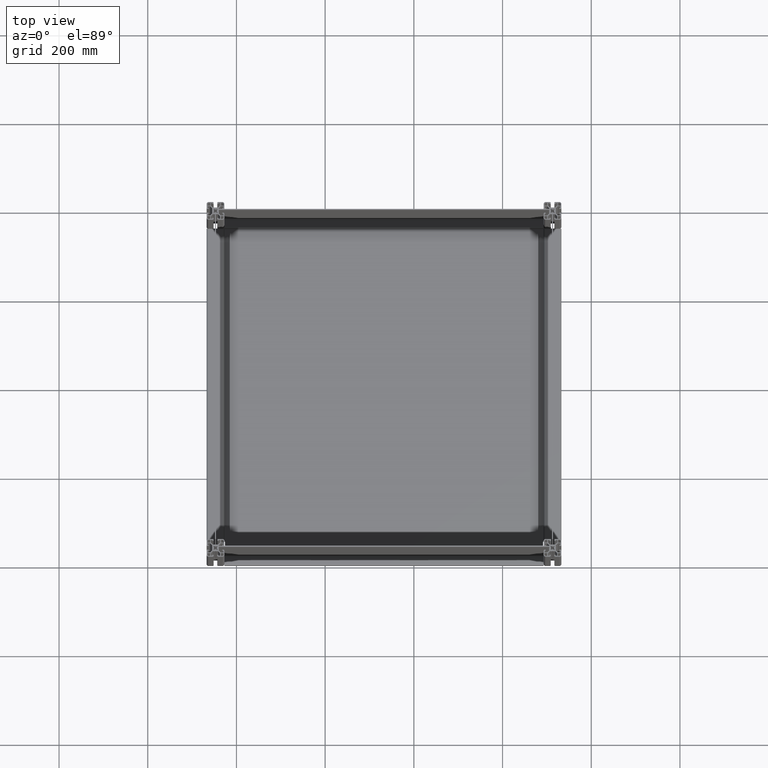
[diagram: clean part render]
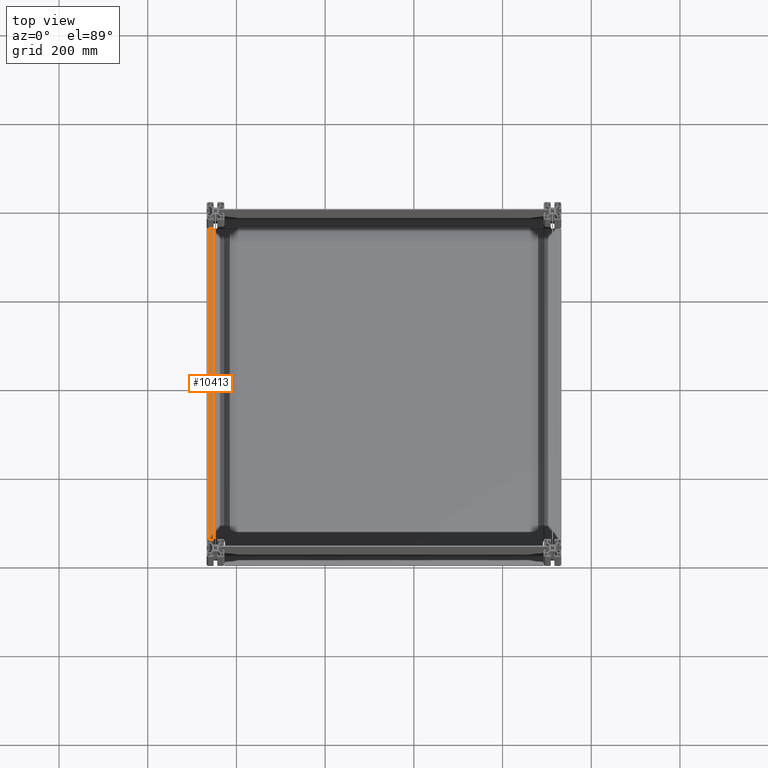
[diagram: same view with one face highlighted and labeled with its STEP entity id]
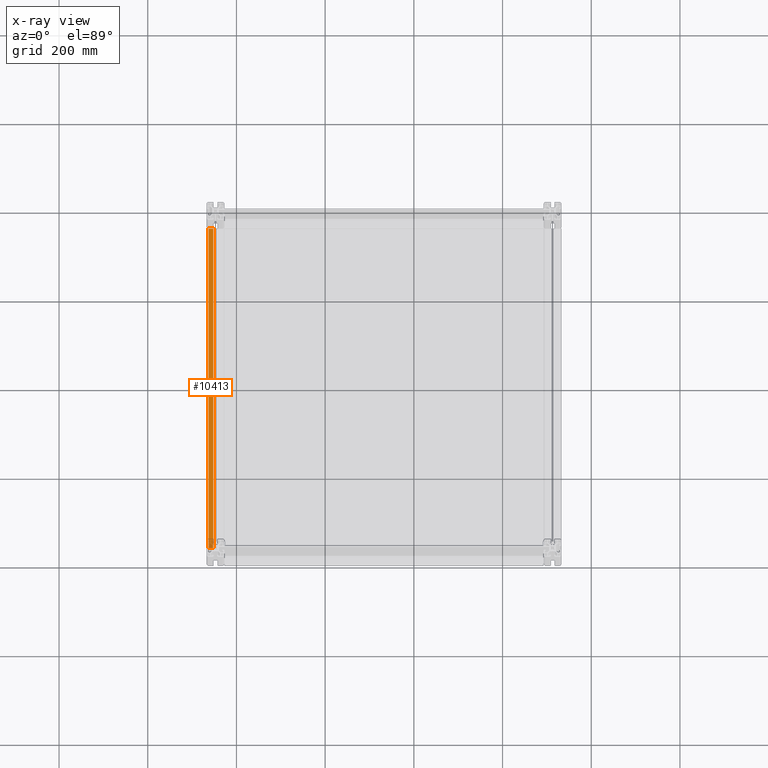
[diagram: x-ray of the same camera — body ghosted, the highlighted face saturated]
A machine part, top view. The second image highlights one B-rep face of the part: STEP entity #10413.
The next image is the same camera in x-ray: the body ghosted, the highlighted face saturated — about 3% of this face is hidden behind the body in this view.
In plain terms, the highlighted planar face has unit normal (0, 0, -1).
Its self-contained STEP definition (entity closure, byte-faithful):
#28 = CARTESIAN_POINT ( 'NONE',  ( -15.50000000000309974, 20.00000000000180123, 0.000000000000000000 ) ) ;
#367 = VECTOR ( 'NONE', #6047, 1000.000000000000000 ) ;
#420 = LINE ( 'NONE', #2843, #367 ) ;
#842 = CARTESIAN_POINT ( 'NONE',  ( -15.50000000000309974, 20.00000000000180123, 720.0000000000000000 ) ) ;
#862 = CARTESIAN_POINT ( 'NONE',  ( -9.799999999999270628, 20.00000000000180123, 720.0000000000000000 ) ) ;
#1830 = EDGE_CURVE ( 'NONE', #7244, #8387, #3088, .T. ) ;
#2493 = LINE ( 'NONE', #842, #9791 ) ;
#2551 = ORIENTED_EDGE ( 'NONE', *, *, #5279, .F. ) ;
#2720 = DIRECTION ( 'NONE',  ( 0.000000000000000000, 0.000000000000000000, -1.000000000000000000 ) ) ;
#2778 = ORIENTED_EDGE ( 'NONE', *, *, #11383, .F. ) ;
#2843 = CARTESIAN_POINT ( 'NONE',  ( -5.100000000000360245, 20.00000000000180123, 720.0000000000000000 ) ) ;
#3088 = LINE ( 'NONE', #11557, #6857 ) ;
#3416 = VERTEX_POINT ( 'NONE', #6130 ) ;
#3674 = DIRECTION ( 'NONE',  ( -1.000000000000000000, 0.000000000000000000, 0.000000000000000000 ) ) ;
#5254 = ORIENTED_EDGE ( 'NONE', *, *, #9820, .F. ) ;
#5279 = EDGE_CURVE ( 'NONE', #9182, #3416, #7301, .T. ) ;
#5605 = CARTESIAN_POINT ( 'NONE',  ( -5.100000000000360245, 20.00000000000180123, 720.0000000000000000 ) ) ;
#6047 = DIRECTION ( 'NONE',  ( 0.000000000000000000, 0.000000000000000000, 1.000000000000000000 ) ) ;
#6130 = CARTESIAN_POINT ( 'NONE',  ( -15.50000000000309974, 20.00000000000180123, 720.0000000000000000 ) ) ;
#6857 = VECTOR ( 'NONE', #7023, 1000.000000000000000 ) ;
#6980 = PLANE ( 'NONE',  #10477 ) ;
#7023 = DIRECTION ( 'NONE',  ( -1.000000000000000000, 0.000000000000000000, 0.000000000000000000 ) ) ;
#7244 = VERTEX_POINT ( 'NONE', #8882 ) ;
#7301 = LINE ( 'NONE', #862, #7426 ) ;
#7426 = VECTOR ( 'NONE', #3674, 1000.000000000000000 ) ;
#8387 = VERTEX_POINT ( 'NONE', #28 ) ;
#8716 = CARTESIAN_POINT ( 'NONE',  ( -5.100000000000360245, 20.00000000000180123, 720.0000000000000000 ) ) ;
#8792 = DIRECTION ( 'NONE',  ( 0.000000000000000000, 0.000000000000000000, -1.000000000000000000 ) ) ;
#8882 = CARTESIAN_POINT ( 'NONE',  ( -5.100000000000360245, 20.00000000000180123, 0.000000000000000000 ) ) ;
#9182 = VERTEX_POINT ( 'NONE', #5605 ) ;
#9791 = VECTOR ( 'NONE', #2720, 1000.000000000000000 ) ;
#9820 = EDGE_CURVE ( 'NONE', #3416, #8387, #2493, .T. ) ;
#10044 = EDGE_LOOP ( 'NONE', ( #2551, #2778, #10419, #5254 ) ) ;
#10413 = ADVANCED_FACE ( 'NONE', ( #10663 ), #6980, .F. ) ;
#10419 = ORIENTED_EDGE ( 'NONE', *, *, #1830, .T. ) ;
#10477 = AXIS2_PLACEMENT_3D ( 'NONE', #8716, #11310, #8792 ) ;
#10663 = FACE_OUTER_BOUND ( 'NONE', #10044, .T. ) ;
#11310 = DIRECTION ( 'NONE',  ( 0.000000000000000000, -1.000000000000000000, 0.000000000000000000 ) ) ;
#11383 = EDGE_CURVE ( 'NONE', #7244, #9182, #420, .T. ) ;
#11557 = CARTESIAN_POINT ( 'NONE',  ( -5.100000000000360245, 20.00000000000180123, 0.000000000000000000 ) ) ;